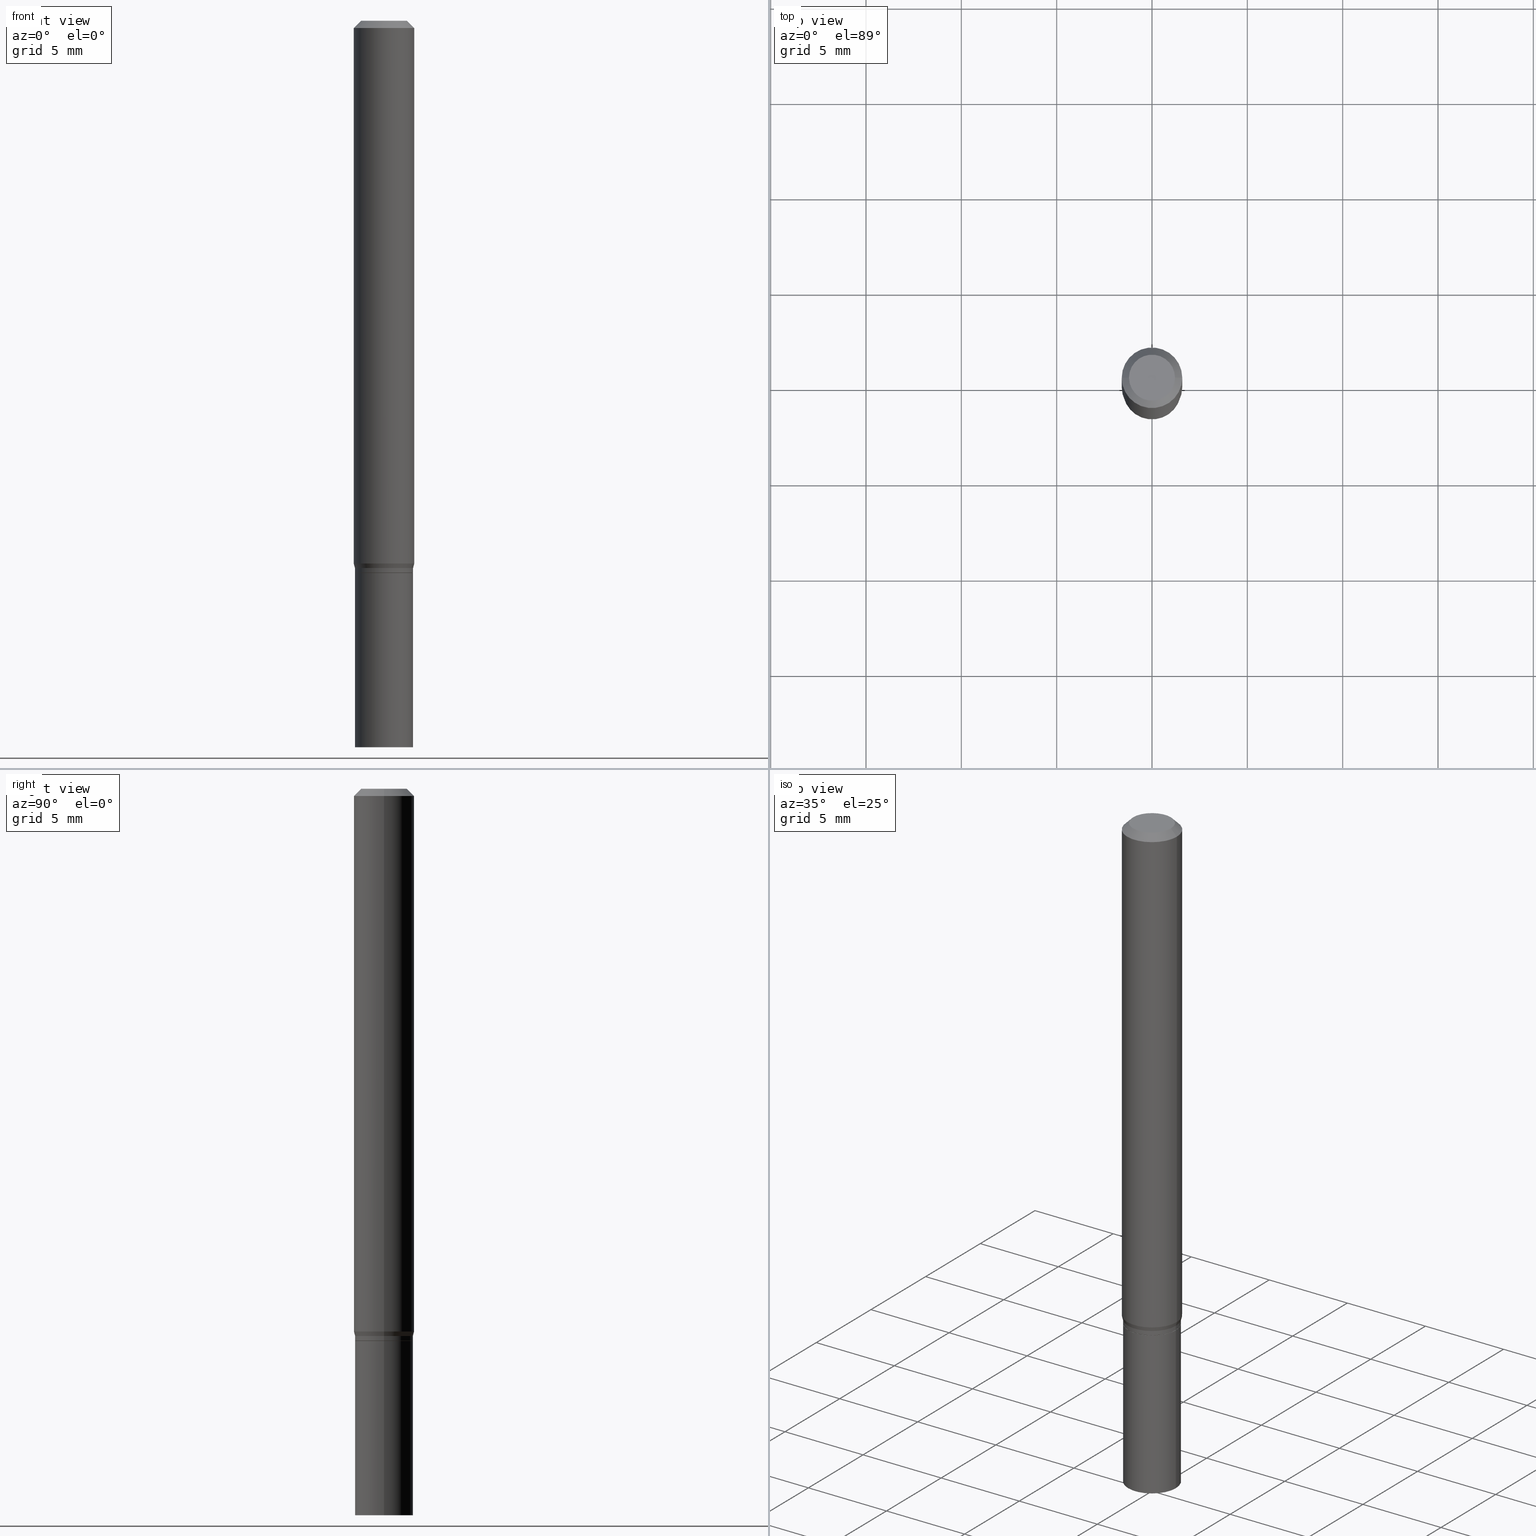
[diagram: canonical four-view strip — front | top / right | iso, engineering-drawing reading convention]
A machine part, canonical four-view strip (front | top / right | iso — engineering-drawing reading convention). The complete STEP part file that produces these views, byte-faithful:
ISO-10303-21;
HEADER;
FILE_DESCRIPTION (( 'STEP AP203' ),
    '1' );
FILE_NAME ('02503.STEP',
    '2024-03-18T21:00:45',
    ( '' ),
    ( '' ),
    'SwSTEP 2.0',
    'SolidWorks 2023',
    '' );
FILE_SCHEMA (( 'CONFIG_CONTROL_DESIGN' ));
ENDSEC;

DATA;
#1 = APPROVAL_DATE_TIME ( #7, #220 ) ;
#2 = AXIS2_PLACEMENT_3D ( 'NONE', #415, #94, #234 ) ;
#3 = APPROVAL_PERSON_ORGANIZATION ( #364, #220, #327 ) ;
#4 = DIRECTION ( 'NONE',  ( -2.445468806185136597E-29, 3.491481338843145583E-15, 1.000000000000000000 ) ) ;
#5 = PERSON_AND_ORGANIZATION ( #318, #158 ) ;
#6 = EDGE_CURVE ( 'NONE', #292, #28, #214, .T. ) ;
#7 = DATE_AND_TIME ( #179, #379 ) ;
#8 = VERTEX_POINT ( 'NONE', #203 ) ;
#9 = CARTESIAN_POINT ( 'NONE',  ( -0.04749999999999999362, 3.578768372314206562E-16, -1.989643822619551895E-16 ) ) ;
#10 = CALENDAR_DATE ( 2024, 18, 3 ) ;
#11 = AXIS2_PLACEMENT_3D ( 'NONE', #178, #4, #329 ) ;
#12 = ORIENTED_EDGE ( 'NONE', *, *, #258, .F. ) ;
#13 = ORIENTED_EDGE ( 'NONE', *, *, #176, .T. ) ;
#14 = AXIS2_PLACEMENT_3D ( 'NONE', #269, #343, #98 ) ;
#15 = ORIENTED_EDGE ( 'NONE', *, *, #284, .T. ) ;
#16 = CARTESIAN_POINT ( 'NONE',  ( 2.787834439051055989E-29, -3.980288726281186698E-15, -1.140000000000000124 ) ) ;
#17 = ORIENTED_EDGE ( 'NONE', *, *, #430, .F. ) ;
#18 = EDGE_CURVE ( 'NONE', #455, #225, #433, .T. ) ;
#19 = ORIENTED_EDGE ( 'NONE', *, *, #333, .T. ) ;
#20 = CARTESIAN_POINT ( 'NONE',  ( -0.05999999999999999778, -4.182429725816891947E-15, -1.500000000000000222 ) ) ;
#21 = ORIENTED_EDGE ( 'NONE', *, *, #335, .F. ) ;
#22 = EDGE_LOOP ( 'NONE', ( #90, #13, #145, #113 ) ) ;
#23 = DIRECTION ( 'NONE',  ( -2.445468806185136877E-29, 3.491481338843145188E-15, 1.000000000000000000 ) ) ;
#24 = LINE ( 'NONE', #156, #73 ) ;
#25 = CIRCLE ( 'NONE', #331, 0.06250000000000000000 ) ;
#26 =( NAMED_UNIT ( * ) PLANE_ANGLE_UNIT ( ) SI_UNIT ( $, .RADIAN. ) );
#27 = ORIENTED_EDGE ( 'NONE', *, *, #369, .F. ) ;
#28 = VERTEX_POINT ( 'NONE', #309 ) ;
#29 = DIRECTION ( 'NONE',  ( -2.445468806185136597E-29, 3.491481338843145583E-15, 1.000000000000000000 ) ) ;
#30 = DIRECTION ( 'NONE',  ( -2.445468806185136597E-29, 3.491481338843145583E-15, 1.000000000000000000 ) ) ;
#31 = CARTESIAN_POINT ( 'NONE',  ( 0.000000000000000000, 0.000000000000000000, 0.000000000000000000 ) ) ;
#32 = CARTESIAN_POINT ( 'NONE',  ( 3.668203209277705088E-31, -5.237222008264718399E-17, -0.01499999999999999944 ) ) ;
#33 = DIRECTION ( 'NONE',  ( -2.445468806185136597E-29, 3.491481338843145583E-15, 1.000000000000000000 ) ) ;
#34 = DIRECTION ( 'NONE',  ( 2.438088387897960049E-29, -3.491481338843145188E-15, -1.000000000000000000 ) ) ;
#35 = CARTESIAN_POINT ( 'NONE',  ( 2.740563216406686834E-29, -3.912797948517154069E-15, -1.120669872981078674 ) ) ;
#36 = ADVANCED_FACE ( 'NONE', ( #189 ), #344, .T. ) ;
#37 = COORDINATED_UNIVERSAL_TIME_OFFSET ( 5, 0, .BEHIND. ) ;
#38 = FACE_OUTER_BOUND ( 'NONE', #22, .T. ) ;
#39 = APPROVAL_STATUS ( 'not_yet_approved' ) ;
#40 = ADVANCED_FACE ( 'NONE', ( #299 ), #207, .T. ) ;
#41 = LOCAL_TIME ( 17, 0, 45.00000000000000000, #105 ) ;
#42 = ORIENTED_EDGE ( 'NONE', *, *, #164, .T. ) ;
#43 = DIRECTION ( 'NONE',  ( 1.000000000000000000, -6.982962677686270655E-15, 0.000000000000000000 ) ) ;
#44 = PERSON_AND_ORGANIZATION_ROLE ( 'design_owner' ) ;
#45 = ADVANCED_BREP_SHAPE_REPRESENTATION ( '02503', ( #124, #437, #422 ), #405 ) ;
#46 = COORDINATED_UNIVERSAL_TIME_OFFSET ( 5, 0, .BEHIND. ) ;
#47 = CIRCLE ( 'NONE', #104, 0.05999999999999999778 ) ;
#48 = AXIS2_PLACEMENT_3D ( 'NONE', #349, #29, #457 ) ;
#49 = ORIENTED_EDGE ( 'NONE', *, *, #250, .F. ) ;
#50 = PRODUCT_DEFINITION ( 'UNKNOWN', '', #173, #363 ) ;
#51 = DIRECTION ( 'NONE',  ( 1.000000000000000000, -6.982962677686265922E-15, 4.876176775795935793E-29 ) ) ;
#52 = LINE ( 'NONE', #229, #157 ) ;
#53 = CLOSED_SHELL ( 'NONE', ( #399, #431, #58, #358 ) ) ;
#54 = CONICAL_SURFACE ( 'NONE', #282, 0.05949999999999999734, 0.7853981633974739252 ) ;
#55 = CARTESIAN_POINT ( 'NONE',  ( -0.06000000000000006023, -3.552217344155704310E-15, -1.139500000000000179 ) ) ;
#56 = DIRECTION ( 'NONE',  ( -2.445468806185136597E-29, 3.491481338843145583E-15, 1.000000000000000000 ) ) ;
#57 = CYLINDRICAL_SURFACE ( 'NONE', #404, 0.05999999999999999778 ) ;
#58 = ADVANCED_FACE ( 'NONE', ( #117 ), #57, .T. ) ;
#59 = PLANE ( 'NONE',  #276 ) ;
#60 = FACE_OUTER_BOUND ( 'NONE', #402, .T. ) ;
#61 = AXIS2_PLACEMENT_3D ( 'NONE', #155, #70, #191 ) ;
#62 = CARTESIAN_POINT ( 'NONE',  ( 2.740563216406686834E-29, -3.912797948517154069E-15, -1.120669872981078674 ) ) ;
#63 = DIRECTION ( 'NONE',  ( -2.445468806185136877E-29, 3.491481338843145188E-15, 1.000000000000000000 ) ) ;
#64 = CC_DESIGN_DATE_AND_TIME_ASSIGNMENT ( #251, #359, ( #50 ) ) ;
#65 = CARTESIAN_POINT ( 'NONE',  ( 4.189777606612038494E-16, 0.05999999999999602179, -1.140000000000000346 ) ) ;
#66 = DIRECTION ( 'NONE',  ( -2.445468806185136597E-29, 3.491481338843145583E-15, 1.000000000000000000 ) ) ;
#67 = VECTOR ( 'NONE', #63, 39.37007874015748143 ) ;
#68 = VECTOR ( 'NONE', #308, 39.37007874015748143 ) ;
#69 = DIRECTION ( 'NONE',  ( -1.000000000000000000, 6.982962677686266711E-15, 0.000000000000000000 ) ) ;
#70 = DIRECTION ( 'NONE',  ( -2.445468806185136597E-29, 3.491481338843145583E-15, 1.000000000000000000 ) ) ;
#71 = EDGE_CURVE ( 'NONE', #111, #455, #52, .T. ) ;
#72 = PERSON_AND_ORGANIZATION_ROLE ( 'creator' ) ;
#73 = VECTOR ( 'NONE', #346, 39.37007874015748143 ) ;
#74 = LOCAL_TIME ( 17, 0, 45.00000000000000000, #37 ) ;
#75 = FACE_OUTER_BOUND ( 'NONE', #237, .T. ) ;
#76 = PERSON_AND_ORGANIZATION ( #318, #158 ) ;
#77 = APPROVAL ( #219, 'UNSPECIFIED' ) ;
#78 = PERSON_AND_ORGANIZATION ( #318, #158 ) ;
#79 = ORIENTED_EDGE ( 'NONE', *, *, #403, .F. ) ;
#80 = ORIENTED_EDGE ( 'NONE', *, *, #83, .F. ) ;
#81 = ORIENTED_EDGE ( 'NONE', *, *, #260, .F. ) ;
#82 = CONICAL_SURFACE ( 'NONE', #14, 0.06000000000000020595, 0.2617993877991496854 ) ;
#83 = EDGE_CURVE ( 'NONE', #115, #111, #460, .T. ) ;
#84 = ORIENTED_EDGE ( 'NONE', *, *, #236, .T. ) ;
#85 = EDGE_CURVE ( 'NONE', #28, #226, #24, .T. ) ;
#86 =( NAMED_UNIT ( * ) SI_UNIT ( $, .STERADIAN. ) SOLID_ANGLE_UNIT ( ) );
#87 = DIRECTION ( 'NONE',  ( -2.438088387897960049E-29, 3.491481338843145188E-15, 1.000000000000000000 ) ) ;
#88 = EDGE_LOOP ( 'NONE', ( #372, #262 ) ) ;
#89 = FACE_OUTER_BOUND ( 'NONE', #259, .T. ) ;
#90 = ORIENTED_EDGE ( 'NONE', *, *, #248, .T. ) ;
#91 = DIRECTION ( 'NONE',  ( 1.000000000000000000, -6.982962677686267499E-15, 4.876176775795936353E-29 ) ) ;
#92 = EDGE_LOOP ( 'NONE', ( #180, #451, #95, #12 ) ) ;
#93 = CARTESIAN_POINT ( 'NONE',  ( 3.668203209277704895E-29, -5.237222008264718177E-15, -1.500000000000000222 ) ) ;
#94 = DIRECTION ( 'NONE',  ( -2.445468806185136597E-29, 3.491481338843145583E-15, 1.000000000000000000 ) ) ;
#95 = ORIENTED_EDGE ( 'NONE', *, *, #248, .F. ) ;
#96 = AXIS2_PLACEMENT_3D ( 'NONE', #122, #414, #376 ) ;
#97 = CARTESIAN_POINT ( 'NONE',  ( 2.763379750989204444E-29, -3.945373912892755049E-15, -1.130000000000000115 ) ) ;
#98 = DIRECTION ( 'NONE',  ( 1.000000000000000000, -6.982962677686268288E-15, 0.000000000000000000 ) ) ;
#99 = ADVANCED_FACE ( 'NONE', ( #267 ), #324, .T. ) ;
#100 = CARTESIAN_POINT ( 'NONE',  ( 4.865611903635008365E-45, -6.946804277620623666E-31, -1.989643822619527736E-16 ) ) ;
#101 = CARTESIAN_POINT ( 'NONE',  ( 0.04749999999999999362, -4.035134999187581581E-16, -1.989643822619502098E-16 ) ) ;
#102 = CARTESIAN_POINT ( 'NONE',  ( 2.787834439051055989E-29, -3.980288726281186698E-15, -1.140000000000000124 ) ) ;
#103 = DIRECTION ( 'NONE',  ( 2.445468806185136597E-29, -3.491481338843145583E-15, -1.000000000000000000 ) ) ;
#104 = AXIS2_PLACEMENT_3D ( 'NONE', #213, #33, #396 ) ;
#105 = COORDINATED_UNIVERSAL_TIME_OFFSET ( 5, 0, .BEHIND. ) ;
#106 = PERSON_AND_ORGANIZATION_ROLE ( 'classification_officer' ) ;
#107 = LOCAL_TIME ( 17, 0, 45.00000000000000000, #46 ) ;
#108 = DATE_TIME_ROLE ( 'classification_date' ) ;
#109 = ADVANCED_FACE ( 'NONE', ( #60 ), #426, .T. ) ;
#110 = ORIENTED_EDGE ( 'NONE', *, *, #132, .F. ) ;
#111 = VERTEX_POINT ( 'NONE', #136 ) ;
#112 = EDGE_CURVE ( 'NONE', #266, #291, #243, .T. ) ;
#113 = ORIENTED_EDGE ( 'NONE', *, *, #284, .F. ) ;
#114 = DIRECTION ( 'NONE',  ( -2.445468806185136597E-29, 3.491481338843145583E-15, 1.000000000000000000 ) ) ;
#115 = VERTEX_POINT ( 'NONE', #204 ) ;
#116 = APPLICATION_PROTOCOL_DEFINITION ( 'international standard', 'config_control_design', 1994, #232 ) ;
#117 = FACE_OUTER_BOUND ( 'NONE', #224, .T. ) ;
#118 = VERTEX_POINT ( 'NONE', #320 ) ;
#119 = DIRECTION ( 'NONE',  ( -2.445468806185136597E-29, 3.491481338843145583E-15, 1.000000000000000000 ) ) ;
#120 = VECTOR ( 'NONE', #245, 39.37007874015748143 ) ;
#121 = VECTOR ( 'NONE', #23, 39.37007874015748143 ) ;
#122 = CARTESIAN_POINT ( 'NONE',  ( 4.865611903635008365E-45, -6.946804277620623666E-31, -1.989643822619527736E-16 ) ) ;
#123 = CARTESIAN_POINT ( 'NONE',  ( 0.000000000000000000, 0.000000000000000000, 0.000000000000000000 ) ) ;
#124 = MANIFOLD_SOLID_BREP ( 'Body-Move/Copy2[1]', #53 ) ;
#125 = ORIENTED_EDGE ( 'NONE', *, *, #6, .T. ) ;
#126 = DIRECTION ( 'NONE',  ( 1.000000000000000000, -6.982962677686266711E-15, 0.000000000000000000 ) ) ;
#127 = PLANE ( 'NONE',  #338 ) ;
#128 = ORIENTED_EDGE ( 'NONE', *, *, #202, .F. ) ;
#129 = ORIENTED_EDGE ( 'NONE', *, *, #430, .T. ) ;
#130 = VECTOR ( 'NONE', #241, 39.37007874015748143 ) ;
#131 = APPLICATION_CONTEXT ( 'configuration controlled 3d designs of mechanical parts and assemblies' ) ;
#132 = EDGE_CURVE ( 'NONE', #256, #332, #337, .T. ) ;
#133 = AXIS2_PLACEMENT_3D ( 'NONE', #100, #66, #206 ) ;
#134 = SECURITY_CLASSIFICATION ( '', '', #216 ) ;
#135 = FACE_OUTER_BOUND ( 'NONE', #162, .T. ) ;
#136 = CARTESIAN_POINT ( 'NONE',  ( -0.05949999999999999734, -3.554866571329815905E-15, -1.140000000000000124 ) ) ;
#137 = AXIS2_PLACEMENT_3D ( 'NONE', #97, #306, #153 ) ;
#138 = VECTOR ( 'NONE', #265, 39.37007874015748143 ) ;
#139 = CARTESIAN_POINT ( 'NONE',  ( 2.787834439051055989E-29, -3.980288726281186698E-15, -1.140000000000000124 ) ) ;
#140 = CALENDAR_DATE ( 2024, 18, 3 ) ;
#141 = CC_DESIGN_PERSON_AND_ORGANIZATION_ASSIGNMENT ( #435, #72, ( #50 ) ) ;
#142 = COORDINATED_UNIVERSAL_TIME_OFFSET ( 5, 0, .BEHIND. ) ;
#143 = AXIS2_PLACEMENT_3D ( 'NONE', #298, #377, #91 ) ;
#144 = CARTESIAN_POINT ( 'NONE',  ( 0.06250000000000000000, -4.349233115872546527E-15, -1.120669872981078674 ) ) ;
#145 = ORIENTED_EDGE ( 'NONE', *, *, #352, .F. ) ;
#146 = ADVANCED_FACE ( 'NONE', ( #135 ), #330, .T. ) ;
#147 = CC_DESIGN_PERSON_AND_ORGANIZATION_ASSIGNMENT ( #432, #106, ( #134 ) ) ;
#148 = DIRECTION ( 'NONE',  ( 1.000000000000000000, -6.982962677686265922E-15, 4.876176775795935793E-29 ) ) ;
#149 = EDGE_LOOP ( 'NONE', ( #194, #287, #300, #49 ) ) ;
#150 = AXIS2_PLACEMENT_3D ( 'NONE', #159, #454, #126 ) ;
#151 = ORIENTED_EDGE ( 'NONE', *, *, #202, .T. ) ;
#152 = MECHANICAL_CONTEXT ( 'NONE', #232, 'mechanical' ) ;
#153 = DIRECTION ( 'NONE',  ( 1.000000000000000000, -6.982962677686268288E-15, 0.000000000000000000 ) ) ;
#154 = CYLINDRICAL_SURFACE ( 'NONE', #305, 0.06250000000000000000 ) ;
#155 = CARTESIAN_POINT ( 'NONE',  ( 0.000000000000000000, 0.000000000000000000, 0.000000000000000000 ) ) ;
#156 = CARTESIAN_POINT ( 'NONE',  ( -0.06250000000000000000, 4.440892098500626162E-16, -3.074334431409316114E-30 ) ) ;
#157 = VECTOR ( 'NONE', #374, 39.37007874015748143 ) ;
#158 = ORGANIZATION ( 'UNSPECIFIED', 'UNSPECIFIED', '' ) ;
#159 = CARTESIAN_POINT ( 'NONE',  ( 3.668203209277705088E-31, -5.237222008264718399E-17, -0.01499999999999999944 ) ) ;
#160 = LINE ( 'NONE', #416, #208 ) ;
#161 = FACE_OUTER_BOUND ( 'NONE', #381, .T. ) ;
#162 = EDGE_LOOP ( 'NONE', ( #272, #110, #42, #201 ) ) ;
#163 = DIRECTION ( 'NONE',  ( 1.000000000000000000, -6.982962677686269077E-15, 0.000000000000000000 ) ) ;
#164 = EDGE_CURVE ( 'NONE', #256, #226, #427, .T. ) ;
#165 = CARTESIAN_POINT ( 'NONE',  ( 0.000000000000000000, 0.000000000000000000, 0.000000000000000000 ) ) ;
#166 = CARTESIAN_POINT ( 'NONE',  ( 2.763379750989204444E-29, -3.945373912892755049E-15, -1.130000000000000115 ) ) ;
#167 = CIRCLE ( 'NONE', #389, 0.05999999999999999778 ) ;
#168 = CARTESIAN_POINT ( 'NONE',  ( -0.06250000000000000000, 3.840629472727444916E-16, -0.01499999999999999944 ) ) ;
#169 = DIRECTION ( 'NONE',  ( -1.000000000000000000, 6.982962677686265922E-15, -4.876176775795935793E-29 ) ) ;
#170 = APPROVAL_DATE_TIME ( #210, #77 ) ;
#171 = DIRECTION ( 'NONE',  ( 1.000000000000000000, -6.982962677686265922E-15, 4.876176775795935793E-29 ) ) ;
#172 = DIRECTION ( 'NONE',  ( 0.7071067811865656694, -2.468850131082446387E-15, 0.7071067811865294761 ) ) ;
#173 = PRODUCT_DEFINITION_FORMATION_WITH_SPECIFIED_SOURCE ( 'ANY', '', #321, .NOT_KNOWN. ) ;
#174 = CALENDAR_DATE ( 2024, 18, 3 ) ;
#175 = EDGE_CURVE ( 'NONE', #118, #28, #357, .T. ) ;
#176 = EDGE_CURVE ( 'NONE', #455, #118, #383, .T. ) ;
#177 = ORIENTED_EDGE ( 'NONE', *, *, #112, .T. ) ;
#178 = CARTESIAN_POINT ( 'NONE',  ( 2.786611704647963188E-29, -3.978542985611764405E-15, -1.139500000000000179 ) ) ;
#179 = CALENDAR_DATE ( 2024, 18, 3 ) ;
#180 = ORIENTED_EDGE ( 'NONE', *, *, #83, .T. ) ;
#181 = CIRCLE ( 'NONE', #450, 0.06000000000000020595 ) ;
#182 = CALENDAR_DATE ( 2024, 18, 3 ) ;
#183 = CIRCLE ( 'NONE', #373, 0.05949999999999999734 ) ;
#184 = ORIENTED_EDGE ( 'NONE', *, *, #164, .F. ) ;
#185 = CC_DESIGN_DATE_AND_TIME_ASSIGNMENT ( #218, #108, ( #134 ) ) ;
#186 = EDGE_LOOP ( 'NONE', ( #436, #446, #407, #184 ) ) ;
#187 = LENGTH_MEASURE_WITH_UNIT ( LENGTH_MEASURE( 0.02539999999999999897 ), #444 );
#188 = DIRECTION ( 'NONE',  ( 1.000000000000000000, -6.982962677686268288E-15, 0.000000000000000000 ) ) ;
#189 = FACE_OUTER_BOUND ( 'NONE', #186, .T. ) ;
#190 = APPROVAL_PERSON_ORGANIZATION ( #401, #77, #429 ) ;
#191 = DIRECTION ( 'NONE',  ( 1.000000000000000000, -6.982962677686265922E-15, 4.876176775795935793E-29 ) ) ;
#192 = UNCERTAINTY_MEASURE_WITH_UNIT (LENGTH_MEASURE( 1.000000000000000082E-05 ), #412, 'distance_accuracy_value', 'NONE');
#193 = FACE_OUTER_BOUND ( 'NONE', #230, .T. ) ;
#194 = ORIENTED_EDGE ( 'NONE', *, *, #352, .T. ) ;
#195 = DIRECTION ( 'NONE',  ( -2.445468806185136597E-29, 3.491481338843145583E-15, 1.000000000000000000 ) ) ;
#196 = ORIENTED_EDGE ( 'NONE', *, *, #85, .T. ) ;
#197 = DIRECTION ( 'NONE',  ( 1.000000000000000000, -6.982962677686259611E-15, 0.000000000000000000 ) ) ;
#198 = DIRECTION ( 'NONE',  ( -2.445468806185136597E-29, 3.491481338843145583E-15, 1.000000000000000000 ) ) ;
#199 = ADVANCED_FACE ( 'NONE', ( #280 ), #388, .F. ) ;
#200 = DIRECTION ( 'NONE',  ( -2.438088387897960049E-29, 3.491481338843145188E-15, 1.000000000000000000 ) ) ;
#201 = ORIENTED_EDGE ( 'NONE', *, *, #390, .T. ) ;
#202 = EDGE_CURVE ( 'NONE', #118, #368, #181, .T. ) ;
#203 = CARTESIAN_POINT ( 'NONE',  ( 0.06250000000000000000, -4.888073874380388472E-16, -0.01499999999999999944 ) ) ;
#204 = CARTESIAN_POINT ( 'NONE',  ( 0.05949999999999999734, -4.395775005603518747E-15, -1.140000000000000124 ) ) ;
#205 = CARTESIAN_POINT ( 'NONE',  ( 0.05999999999999999778, -5.656199768925894810E-15, -1.500000000000000222 ) ) ;
#206 = DIRECTION ( 'NONE',  ( 1.000000000000000000, -6.982962677686267499E-15, 4.852736867747366768E-29 ) ) ;
#207 = CONICAL_SURFACE ( 'NONE', #137, 0.06000000000000020595, 0.2617993877991496854 ) ;
#208 = VECTOR ( 'NONE', #319, 39.37007874015748143 ) ;
#209 = DIRECTION ( 'NONE',  ( -0.7071067811865522357, 2.468850131082306364E-15, -0.7071067811865427988 ) ) ;
#210 = DATE_AND_TIME ( #182, #107 ) ;
#211 = CARTESIAN_POINT ( 'NONE',  ( 0.000000000000000000, 0.000000000000000000, 0.000000000000000000 ) ) ;
#212 = DIMENSIONAL_EXPONENTS ( 1.000000000000000000, 0.000000000000000000, 0.000000000000000000, 0.000000000000000000, 0.000000000000000000, 0.000000000000000000, 0.000000000000000000 ) ;
#213 = CARTESIAN_POINT ( 'NONE',  ( 2.787834439051055989E-29, -3.980288726281186698E-15, -1.140000000000000124 ) ) ;
#214 = CIRCLE ( 'NONE', #275, 0.06250000000000000000 ) ;
#215 = CIRCLE ( 'NONE', #221, 0.05999999999999999778 ) ;
#216 = SECURITY_CLASSIFICATION_LEVEL ( 'unclassified' ) ;
#217 = ADVANCED_FACE ( 'NONE', ( #75 ), #246, .T. ) ;
#218 = DATE_AND_TIME ( #10, #397 ) ;
#219 = APPROVAL_STATUS ( 'not_yet_approved' ) ;
#220 = APPROVAL ( #322, 'UNSPECIFIED' ) ;
#221 = AXIS2_PLACEMENT_3D ( 'NONE', #424, #277, #353 ) ;
#222 = EDGE_LOOP ( 'NONE', ( #80, #81 ) ) ;
#223 = ORIENTED_EDGE ( 'NONE', *, *, #71, .F. ) ;
#224 = EDGE_LOOP ( 'NONE', ( #21, #129, #177, #458 ) ) ;
#225 = VERTEX_POINT ( 'NONE', #392 ) ;
#226 = VERTEX_POINT ( 'NONE', #285 ) ;
#227 = EDGE_CURVE ( 'NONE', #291, #366, #47, .T. ) ;
#228 = CC_DESIGN_SECURITY_CLASSIFICATION ( #134, ( #173 ) ) ;
#229 = CARTESIAN_POINT ( 'NONE',  ( -0.05949999999999999734, -3.557515798503927106E-15, -1.140000000000000124 ) ) ;
#230 = EDGE_LOOP ( 'NONE', ( #223, #339, #257, #406 ) ) ;
#231 = ORIENTED_EDGE ( 'NONE', *, *, #250, .T. ) ;
#232 = APPLICATION_CONTEXT ( 'configuration controlled 3d designs of mechanical parts and assemblies' ) ;
#233 = CARTESIAN_POINT ( 'NONE',  ( 0.06250000000000000000, -4.364351673553916694E-16, 3.047610484872459871E-30 ) ) ;
#234 = DIRECTION ( 'NONE',  ( 1.000000000000000000, -6.982962677686259611E-15, 0.000000000000000000 ) ) ;
#235 = FACE_OUTER_BOUND ( 'NONE', #439, .T. ) ;
#236 = EDGE_CURVE ( 'NONE', #28, #292, #325, .T. ) ;
#237 = EDGE_LOOP ( 'NONE', ( #307, #328, #15, #128 ) ) ;
#238 = CLOSED_SHELL ( 'NONE', ( #303, #99, #36, #315, #40, #323, #109, #146, #199, #420, #456, #217 ) ) ;
#239 = APPROVAL_PERSON_ORGANIZATION ( #78, #311, #255 ) ;
#240 = FACE_OUTER_BOUND ( 'NONE', #442, .T. ) ;
#241 = DIRECTION ( 'NONE',  ( -2.445468806185136877E-29, 3.491481338843145188E-15, 1.000000000000000000 ) ) ;
#242 = PLANE ( 'NONE',  #355 ) ;
#243 = LINE ( 'NONE', #385, #130 ) ;
#244 = CARTESIAN_POINT ( 'NONE',  ( -0.05999999999999999778, -4.182429725816891947E-15, -1.140000000000000124 ) ) ;
#245 = DIRECTION ( 'NONE',  ( -0.2588190451025210170, 5.211531920934547886E-15, 0.9659258262890682012 ) ) ;
#246 = CYLINDRICAL_SURFACE ( 'NONE', #304, 0.06000000000000012962 ) ;
#247 = CARTESIAN_POINT ( 'NONE',  ( 0.06000000000000020595, -4.364351673553932471E-15, -1.130000000000000115 ) ) ;
#248 = EDGE_CURVE ( 'NONE', #225, #455, #289, .T. ) ;
#249 = DIRECTION ( 'NONE',  ( 0.2588190451025210170, 1.565188264969624531E-15, 0.9659258262890682012 ) ) ;
#250 = EDGE_CURVE ( 'NONE', #368, #292, #281, .T. ) ;
#251 = DATE_AND_TIME ( #174, #74 ) ;
#252 = AXIS2_PLACEMENT_3D ( 'NONE', #445, #348, #163 ) ;
#253 = CIRCLE ( 'NONE', #411, 0.05999999999999999778 ) ;
#254 = ORIENTED_EDGE ( 'NONE', *, *, #132, .T. ) ;
#255 = APPROVAL_ROLE ( '' ) ;
#256 = VERTEX_POINT ( 'NONE', #9 ) ;
#257 = ORIENTED_EDGE ( 'NONE', *, *, #258, .T. ) ;
#258 = EDGE_CURVE ( 'NONE', #115, #225, #391, .T. ) ;
#259 = EDGE_LOOP ( 'NONE', ( #125, #196, #27, #79 ) ) ;
#260 = EDGE_CURVE ( 'NONE', #111, #115, #183, .T. ) ;
#261 = DIRECTION ( 'NONE',  ( 1.000000000000000000, -6.982962677686267499E-15, 4.876176775795936353E-29 ) ) ;
#262 = ORIENTED_EDGE ( 'NONE', *, *, #268, .T. ) ;
#263 = VECTOR ( 'NONE', #209, 39.37007874015748143 ) ;
#264 = VECTOR ( 'NONE', #172, 39.37007874015748143 ) ;
#265 = DIRECTION ( 'NONE',  ( 0.7071067811865522357, -7.319954787623271823E-15, -0.7071067811865427988 ) ) ;
#266 = VERTEX_POINT ( 'NONE', #205 ) ;
#267 = FACE_OUTER_BOUND ( 'NONE', #92, .T. ) ;
#268 = EDGE_CURVE ( 'NONE', #366, #291, #253, .T. ) ;
#269 = CARTESIAN_POINT ( 'NONE',  ( 2.763379750989204444E-29, -3.945373912892755049E-15, -1.130000000000000115 ) ) ;
#270 = CC_DESIGN_PERSON_AND_ORGANIZATION_ASSIGNMENT ( #5, #365, ( #173 ) ) ;
#271 = LINE ( 'NONE', #294, #138 ) ;
#272 = ORIENTED_EDGE ( 'NONE', *, *, #438, .F. ) ;
#273 = DIRECTION ( 'NONE',  ( -1.000000000000000000, 6.982962677686265922E-15, -4.876176775795935793E-29 ) ) ;
#274 = ORIENTED_EDGE ( 'NONE', *, *, #85, .F. ) ;
#275 = AXIS2_PLACEMENT_3D ( 'NONE', #62, #119, #378 ) ;
#276 = AXIS2_PLACEMENT_3D ( 'NONE', #380, #200, #148 ) ;
#277 = DIRECTION ( 'NONE',  ( -2.445468806185136597E-29, 3.491481338843145583E-15, 1.000000000000000000 ) ) ;
#278 = DIRECTION ( 'NONE',  ( 1.000000000000000000, -6.982962677686268288E-15, 0.000000000000000000 ) ) ;
#279 = LINE ( 'NONE', #419, #68 ) ;
#280 = FACE_OUTER_BOUND ( 'NONE', #297, .T. ) ;
#281 = LINE ( 'NONE', #247, #362 ) ;
#282 = AXIS2_PLACEMENT_3D ( 'NONE', #417, #441, #197 ) ;
#283 = SHAPE_DEFINITION_REPRESENTATION ( #326, #45 ) ;
#284 = EDGE_CURVE ( 'NONE', #225, #368, #160, .T. ) ;
#285 = CARTESIAN_POINT ( 'NONE',  ( -0.06250000000000000000, -1.538495874449838155E-15, -0.01499999999999999944 ) ) ;
#286 = DATE_AND_TIME ( #140, #41 ) ;
#287 = ORIENTED_EDGE ( 'NONE', *, *, #175, .T. ) ;
#288 = CARTESIAN_POINT ( 'NONE',  ( 0.05949999999999999734, -4.395775005603518747E-15, -1.140000000000000124 ) ) ;
#289 = CIRCLE ( 'NONE', #11, 0.06000000000000006023 ) ;
#290 = APPROVAL_DATE_TIME ( #286, #311 ) ;
#291 = VERTEX_POINT ( 'NONE', #425 ) ;
#292 = VERTEX_POINT ( 'NONE', #144 ) ;
#293 = CC_DESIGN_APPROVAL ( #311, ( #173 ) ) ;
#294 = CARTESIAN_POINT ( 'NONE',  ( 0.06250000000000000000, -4.811533449433679005E-16, -0.01499999999999999944 ) ) ;
#295 = CC_DESIGN_PERSON_AND_ORGANIZATION_ASSIGNMENT ( #316, #44, ( #321 ) ) ;
#296 = CYLINDRICAL_SURFACE ( 'NONE', #61, 0.06000000000000012962 ) ;
#297 = EDGE_LOOP ( 'NONE', ( #254, #341 ) ) ;
#298 = CARTESIAN_POINT ( 'NONE',  ( 0.000000000000000000, 0.000000000000000000, 0.000000000000000000 ) ) ;
#299 = FACE_OUTER_BOUND ( 'NONE', #149, .T. ) ;
#300 = ORIENTED_EDGE ( 'NONE', *, *, #6, .F. ) ;
#301 = DIRECTION ( 'NONE',  ( 2.438088387897960049E-29, -3.491481338843145188E-15, -1.000000000000000000 ) ) ;
#302 = ORIENTED_EDGE ( 'NONE', *, *, #335, .T. ) ;
#303 = ADVANCED_FACE ( 'NONE', ( #38 ), #296, .T. ) ;
#304 = AXIS2_PLACEMENT_3D ( 'NONE', #211, #464, #171 ) ;
#305 = AXIS2_PLACEMENT_3D ( 'NONE', #165, #347, #465 ) ;
#306 = DIRECTION ( 'NONE',  ( -2.445468806185136597E-29, 3.491481338843145583E-15, 1.000000000000000000 ) ) ;
#307 = ORIENTED_EDGE ( 'NONE', *, *, #176, .F. ) ;
#308 = DIRECTION ( 'NONE',  ( -2.445468806185136877E-29, 3.491481338843145188E-15, 1.000000000000000000 ) ) ;
#309 = CARTESIAN_POINT ( 'NONE',  ( -0.06250000000000000000, -3.468708738667092242E-15, -1.120669872981078674 ) ) ;
#310 = CARTESIAN_POINT ( 'NONE',  ( 0.06000000000000020595, -4.364351673553932471E-15, -1.130000000000000115 ) ) ;
#311 = APPROVAL ( #39, 'UNSPECIFIED' ) ;
#312 = AXIS2_PLACEMENT_3D ( 'NONE', #342, #56, #448 ) ;
#313 = DIRECTION ( 'NONE',  ( -2.445468806185136597E-29, 3.491481338843145583E-15, 1.000000000000000000 ) ) ;
#314 = AXIS2_PLACEMENT_3D ( 'NONE', #35, #361, #43 ) ;
#315 = ADVANCED_FACE ( 'NONE', ( #89 ), #154, .T. ) ;
#316 = PERSON_AND_ORGANIZATION ( #318, #158 ) ;
#317 = CARTESIAN_POINT ( 'NONE',  ( -0.06000000000000012962, 4.263256414560610325E-16, -2.951361054152949719E-30 ) ) ;
#318 = PERSON ( 'UNSPECIFIED', 'UNSPECIFIED', 'UNSPECIFIED', ('UNSPECIFIED'), ('UNSPECIFIED'), ('UNSPECIFIED') ) ;
#319 = DIRECTION ( 'NONE',  ( -2.445468806185136877E-29, 3.491481338843145188E-15, 1.000000000000000000 ) ) ;
#320 = CARTESIAN_POINT ( 'NONE',  ( -0.06000000000000020595, -3.493878505051892611E-15, -1.130000000000000115 ) ) ;
#321 = PRODUCT ( '02503', '02503', '', ( #152 ) ) ;
#322 = APPROVAL_STATUS ( 'not_yet_approved' ) ;
#323 = ADVANCED_FACE ( 'NONE', ( #235 ), #82, .T. ) ;
#324 = CONICAL_SURFACE ( 'NONE', #2, 0.05949999999999999734, 0.7853981633974739252 ) ;
#325 = CIRCLE ( 'NONE', #314, 0.06250000000000000000 ) ;
#326 = PRODUCT_DEFINITION_SHAPE ( 'NONE', 'NONE',  #50 ) ;
#327 = APPROVAL_ROLE ( '' ) ;
#328 = ORIENTED_EDGE ( 'NONE', *, *, #18, .T. ) ;
#329 = DIRECTION ( 'NONE',  ( 1.000000000000000000, -6.982962677686269077E-15, 0.000000000000000000 ) ) ;
#330 = CONICAL_SURFACE ( 'NONE', #395, 0.06250000000000000000, 0.7853981633974549403 ) ;
#331 = AXIS2_PLACEMENT_3D ( 'NONE', #459, #195, #449 ) ;
#332 = VERTEX_POINT ( 'NONE', #101 ) ;
#333 = EDGE_CURVE ( 'NONE', #266, #443, #215, .T. ) ;
#334 = ORIENTED_EDGE ( 'NONE', *, *, #236, .F. ) ;
#335 = EDGE_CURVE ( 'NONE', #443, #366, #279, .T. ) ;
#336 = CYLINDRICAL_SURFACE ( 'NONE', #143, 0.05999999999999999778 ) ;
#337 = CIRCLE ( 'NONE', #133, 0.04749999999999999362 ) ;
#338 = AXIS2_PLACEMENT_3D ( 'NONE', #16, #87, #51 ) ;
#339 = ORIENTED_EDGE ( 'NONE', *, *, #260, .T. ) ;
#340 = DIRECTION ( 'NONE',  ( 0.000000000000000000, 0.000000000000000000, 1.000000000000000000 ) ) ;
#341 = ORIENTED_EDGE ( 'NONE', *, *, #382, .T. ) ;
#342 = CARTESIAN_POINT ( 'NONE',  ( 2.787834439051055989E-29, -3.980288726281186698E-15, -1.140000000000000124 ) ) ;
#343 = DIRECTION ( 'NONE',  ( -2.445468806185136597E-29, 3.491481338843145583E-15, 1.000000000000000000 ) ) ;
#344 = CONICAL_SURFACE ( 'NONE', #410, 0.06250000000000000000, 0.7853981633974549403 ) ;
#345 = CIRCLE ( 'NONE', #96, 0.04749999999999999362 ) ;
#346 = DIRECTION ( 'NONE',  ( -2.445468806185136877E-29, 3.491481338843145188E-15, 1.000000000000000000 ) ) ;
#347 = DIRECTION ( 'NONE',  ( -2.445468806185136597E-29, 3.491481338843145583E-15, 1.000000000000000000 ) ) ;
#348 = DIRECTION ( 'NONE',  ( -2.445468806185136597E-29, 3.491481338843145583E-15, 1.000000000000000000 ) ) ;
#349 = CARTESIAN_POINT ( 'NONE',  ( 2.763379750989204444E-29, -3.945373912892755049E-15, -1.130000000000000115 ) ) ;
#350 = DIRECTION ( 'NONE',  ( -2.445468806185136597E-29, 3.491481338843145583E-15, 1.000000000000000000 ) ) ;
#351 = CARTESIAN_POINT ( 'NONE',  ( 3.316907271900976096E-16, 0.04749999999999999362, -2.653275547260257586E-16 ) ) ;
#352 = EDGE_CURVE ( 'NONE', #368, #118, #462, .T. ) ;
#353 = DIRECTION ( 'NONE',  ( 1.000000000000000000, -6.982962677686268288E-15, 0.000000000000000000 ) ) ;
#354 = DIRECTION ( 'NONE',  ( 1.000000000000000000, -6.982962677686266711E-15, 4.876176775795935793E-29 ) ) ;
#355 = AXIS2_PLACEMENT_3D ( 'NONE', #65, #301, #273 ) ;
#356 = DIRECTION ( 'NONE',  ( 1.000000000000000000, -6.982962677686268288E-15, 0.000000000000000000 ) ) ;
#357 = LINE ( 'NONE', #463, #120 ) ;
#358 = ADVANCED_FACE ( 'NONE', ( #384 ), #242, .F. ) ;
#359 = DATE_TIME_ROLE ( 'creation_date' ) ;
#360 = APPLICATION_PROTOCOL_DEFINITION ( 'international standard', 'config_control_design', 1994, #131 ) ;
#361 = DIRECTION ( 'NONE',  ( -2.445468806185136597E-29, 3.491481338843145583E-15, 1.000000000000000000 ) ) ;
#362 = VECTOR ( 'NONE', #249, 39.37007874015748143 ) ;
#363 = DESIGN_CONTEXT ( 'detailed design', #131, 'design' ) ;
#364 = PERSON_AND_ORGANIZATION ( #318, #158 ) ;
#365 = PERSON_AND_ORGANIZATION_ROLE ( 'creator' ) ;
#366 = VERTEX_POINT ( 'NONE', #244 ) ;
#367 = ORIENTED_EDGE ( 'NONE', *, *, #112, .F. ) ;
#368 = VERTEX_POINT ( 'NONE', #310 ) ;
#369 = EDGE_CURVE ( 'NONE', #8, #226, #25, .T. ) ;
#370 = FACE_OUTER_BOUND ( 'NONE', #222, .T. ) ;
#371 = CARTESIAN_POINT ( 'NONE',  ( 0.000000000000000000, 0.000000000000000000, 0.000000000000000000 ) ) ;
#372 = ORIENTED_EDGE ( 'NONE', *, *, #227, .T. ) ;
#373 = AXIS2_PLACEMENT_3D ( 'NONE', #139, #350, #386 ) ;
#374 = DIRECTION ( 'NONE',  ( -0.7071067811865656694, 7.493145998870420424E-15, 0.7071067811865294761 ) ) ;
#375 = CARTESIAN_POINT ( 'NONE',  ( 3.668203209277705088E-31, -5.237222008264718399E-17, -0.01499999999999999944 ) ) ;
#376 = DIRECTION ( 'NONE',  ( 1.000000000000000000, -6.982962677686267499E-15, 4.852736867747366768E-29 ) ) ;
#377 = DIRECTION ( 'NONE',  ( -2.445468806185136597E-29, 3.491481338843145583E-15, 1.000000000000000000 ) ) ;
#378 = DIRECTION ( 'NONE',  ( 1.000000000000000000, -6.982962677686270655E-15, 0.000000000000000000 ) ) ;
#379 = LOCAL_TIME ( 17, 0, 45.00000000000000000, #142 ) ;
#380 = CARTESIAN_POINT ( 'NONE',  ( 3.576687321579069994E-29, -5.368277968210015545E-15, -1.500000000000000222 ) ) ;
#381 = EDGE_LOOP ( 'NONE', ( #440, #17 ) ) ;
#382 = EDGE_CURVE ( 'NONE', #332, #256, #345, .T. ) ;
#383 = LINE ( 'NONE', #317, #67 ) ;
#384 = FACE_OUTER_BOUND ( 'NONE', #88, .T. ) ;
#385 = CARTESIAN_POINT ( 'NONE',  ( 0.05999999999999999778, -4.189777606611760421E-16, 2.925706065477561756E-30 ) ) ;
#386 = DIRECTION ( 'NONE',  ( 1.000000000000000000, -6.982962677686259611E-15, 0.000000000000000000 ) ) ;
#387 = AXIS2_PLACEMENT_3D ( 'NONE', #351, #34, #169 ) ;
#388 = PLANE ( 'NONE',  #387 ) ;
#389 = AXIS2_PLACEMENT_3D ( 'NONE', #93, #114, #188 ) ;
#390 = EDGE_CURVE ( 'NONE', #226, #8, #452, .T. ) ;
#391 = LINE ( 'NONE', #288, #264 ) ;
#392 = CARTESIAN_POINT ( 'NONE',  ( 0.06000000000000006023, -4.397520746272941039E-15, -1.139500000000000179 ) ) ;
#393 = PERSON_AND_ORGANIZATION_ROLE ( 'design_supplier' ) ;
#394 = AXIS2_PLACEMENT_3D ( 'NONE', #31, #466, #354 ) ;
#395 = AXIS2_PLACEMENT_3D ( 'NONE', #32, #103, #69 ) ;
#396 = DIRECTION ( 'NONE',  ( 1.000000000000000000, -6.982962677686268288E-15, 0.000000000000000000 ) ) ;
#397 = LOCAL_TIME ( 17, 0, 45.00000000000000000, #398 ) ;
#398 = COORDINATED_UNIVERSAL_TIME_OFFSET ( 5, 0, .BEHIND. ) ;
#399 = ADVANCED_FACE ( 'NONE', ( #240 ), #336, .T. ) ;
#400 = ORIENTED_EDGE ( 'NONE', *, *, #175, .F. ) ;
#401 = PERSON_AND_ORGANIZATION ( #318, #158 ) ;
#402 = EDGE_LOOP ( 'NONE', ( #274, #84, #453, #409 ) ) ;
#403 = EDGE_CURVE ( 'NONE', #292, #8, #447, .T. ) ;
#404 = AXIS2_PLACEMENT_3D ( 'NONE', #371, #198, #261 ) ;
#405 =( GEOMETRIC_REPRESENTATION_CONTEXT ( 3 ) GLOBAL_UNCERTAINTY_ASSIGNED_CONTEXT ( ( #192 ) ) GLOBAL_UNIT_ASSIGNED_CONTEXT ( ( #412, #26, #86 ) ) REPRESENTATION_CONTEXT ( 'NONE', 'WORKASPACE' ) );
#406 = ORIENTED_EDGE ( 'NONE', *, *, #18, .F. ) ;
#407 = ORIENTED_EDGE ( 'NONE', *, *, #369, .T. ) ;
#408 = DIRECTION ( 'NONE',  ( 1.000000000000000000, 0.000000000000000000, 0.000000000000000000 ) ) ;
#409 = ORIENTED_EDGE ( 'NONE', *, *, #390, .F. ) ;
#410 = AXIS2_PLACEMENT_3D ( 'NONE', #375, #423, #413 ) ;
#411 = AXIS2_PLACEMENT_3D ( 'NONE', #102, #30, #356 ) ;
#412 =( CONVERSION_BASED_UNIT ( 'INCH', #187 ) LENGTH_UNIT ( ) NAMED_UNIT ( #212 ) );
#413 = DIRECTION ( 'NONE',  ( -1.000000000000000000, 6.982962677686266711E-15, 0.000000000000000000 ) ) ;
#414 = DIRECTION ( 'NONE',  ( -2.445468806185136597E-29, 3.491481338843145583E-15, 1.000000000000000000 ) ) ;
#415 = CARTESIAN_POINT ( 'NONE',  ( 2.787834439051055989E-29, -3.980288726281186698E-15, -1.140000000000000124 ) ) ;
#416 = CARTESIAN_POINT ( 'NONE',  ( 0.06000000000000012962, -4.189777606611768802E-16, 2.925706065477567711E-30 ) ) ;
#417 = CARTESIAN_POINT ( 'NONE',  ( 2.787834439051055989E-29, -3.980288726281186698E-15, -1.140000000000000124 ) ) ;
#418 = ORIENTED_EDGE ( 'NONE', *, *, #227, .F. ) ;
#419 = CARTESIAN_POINT ( 'NONE',  ( -0.05999999999999999778, 4.263256414560600957E-16, -2.951361054152943413E-30 ) ) ;
#420 = ADVANCED_FACE ( 'NONE', ( #370 ), #127, .F. ) ;
#421 = PRODUCT_RELATED_PRODUCT_CATEGORY ( 'detail', '', ( #321 ) ) ;
#422 = AXIS2_PLACEMENT_3D ( 'NONE', #123, #340, #408 ) ;
#423 = DIRECTION ( 'NONE',  ( 2.445468806185136597E-29, -3.491481338843145583E-15, -1.000000000000000000 ) ) ;
#424 = CARTESIAN_POINT ( 'NONE',  ( 3.668203209277704895E-29, -5.237222008264718177E-15, -1.500000000000000222 ) ) ;
#425 = CARTESIAN_POINT ( 'NONE',  ( 0.05999999999999999778, -4.399266486942362543E-15, -1.140000000000000124 ) ) ;
#426 = CYLINDRICAL_SURFACE ( 'NONE', #394, 0.06250000000000000000 ) ;
#427 = LINE ( 'NONE', #168, #263 ) ;
#428 = CC_DESIGN_PERSON_AND_ORGANIZATION_ASSIGNMENT ( #76, #393, ( #173 ) ) ;
#429 = APPROVAL_ROLE ( '' ) ;
#430 = EDGE_CURVE ( 'NONE', #443, #266, #167, .T. ) ;
#431 = ADVANCED_FACE ( 'NONE', ( #161 ), #59, .F. ) ;
#432 = PERSON_AND_ORGANIZATION ( #318, #158 ) ;
#433 = CIRCLE ( 'NONE', #252, 0.06000000000000006023 ) ;
#434 = CC_DESIGN_APPROVAL ( #77, ( #134 ) ) ;
#435 = PERSON_AND_ORGANIZATION ( #318, #158 ) ;
#436 = ORIENTED_EDGE ( 'NONE', *, *, #382, .F. ) ;
#437 = MANIFOLD_SOLID_BREP ( 'Body-Move/Copy2[2]', #238 ) ;
#438 = EDGE_CURVE ( 'NONE', #332, #8, #271, .T. ) ;
#439 = EDGE_LOOP ( 'NONE', ( #400, #151, #231, #334 ) ) ;
#440 = ORIENTED_EDGE ( 'NONE', *, *, #333, .F. ) ;
#441 = DIRECTION ( 'NONE',  ( -2.445468806185136597E-29, 3.491481338843145583E-15, 1.000000000000000000 ) ) ;
#442 = EDGE_LOOP ( 'NONE', ( #19, #302, #418, #367 ) ) ;
#443 = VERTEX_POINT ( 'NONE', #20 ) ;
#444 =( LENGTH_UNIT ( ) NAMED_UNIT ( * ) SI_UNIT ( $, .METRE. ) );
#445 = CARTESIAN_POINT ( 'NONE',  ( 2.786611704647963188E-29, -3.978542985611764405E-15, -1.139500000000000179 ) ) ;
#446 = ORIENTED_EDGE ( 'NONE', *, *, #438, .T. ) ;
#447 = LINE ( 'NONE', #233, #121 ) ;
#448 = DIRECTION ( 'NONE',  ( 1.000000000000000000, -6.982962677686259611E-15, 0.000000000000000000 ) ) ;
#449 = DIRECTION ( 'NONE',  ( 1.000000000000000000, -6.982962677686266711E-15, 0.000000000000000000 ) ) ;
#450 = AXIS2_PLACEMENT_3D ( 'NONE', #166, #313, #278 ) ;
#451 = ORIENTED_EDGE ( 'NONE', *, *, #71, .T. ) ;
#452 = CIRCLE ( 'NONE', #150, 0.06250000000000000000 ) ;
#453 = ORIENTED_EDGE ( 'NONE', *, *, #403, .T. ) ;
#454 = DIRECTION ( 'NONE',  ( -2.445468806185136597E-29, 3.491481338843145583E-15, 1.000000000000000000 ) ) ;
#455 = VERTEX_POINT ( 'NONE', #55 ) ;
#456 = ADVANCED_FACE ( 'NONE', ( #193 ), #54, .T. ) ;
#457 = DIRECTION ( 'NONE',  ( 1.000000000000000000, -6.982962677686268288E-15, 0.000000000000000000 ) ) ;
#458 = ORIENTED_EDGE ( 'NONE', *, *, #268, .F. ) ;
#459 = CARTESIAN_POINT ( 'NONE',  ( 3.668203209277705088E-31, -5.237222008264718399E-17, -0.01499999999999999944 ) ) ;
#460 = CIRCLE ( 'NONE', #312, 0.05949999999999999734 ) ;
#461 = CC_DESIGN_APPROVAL ( #220, ( #50 ) ) ;
#462 = CIRCLE ( 'NONE', #48, 0.06000000000000020595 ) ;
#463 = CARTESIAN_POINT ( 'NONE',  ( -0.06000000000000020595, -3.519048271436693375E-15, -1.130000000000000115 ) ) ;
#464 = DIRECTION ( 'NONE',  ( -2.445468806185136597E-29, 3.491481338843145583E-15, 1.000000000000000000 ) ) ;
#465 = DIRECTION ( 'NONE',  ( 1.000000000000000000, -6.982962677686266711E-15, 4.876176775795935793E-29 ) ) ;
#466 = DIRECTION ( 'NONE',  ( -2.445468806185136597E-29, 3.491481338843145583E-15, 1.000000000000000000 ) ) ;
ENDSEC;
END-ISO-10303-21;
